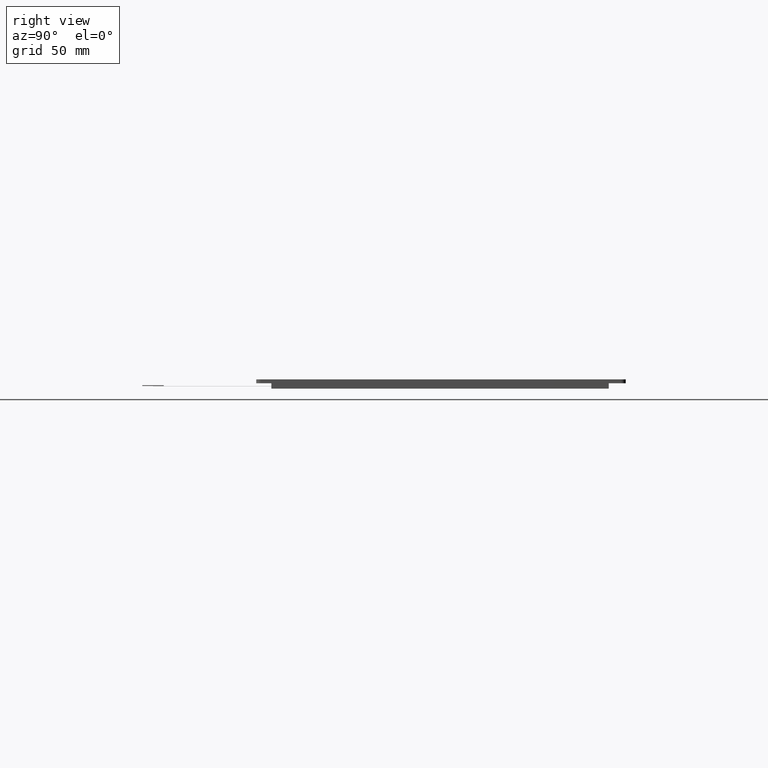
[diagram: clean part render]
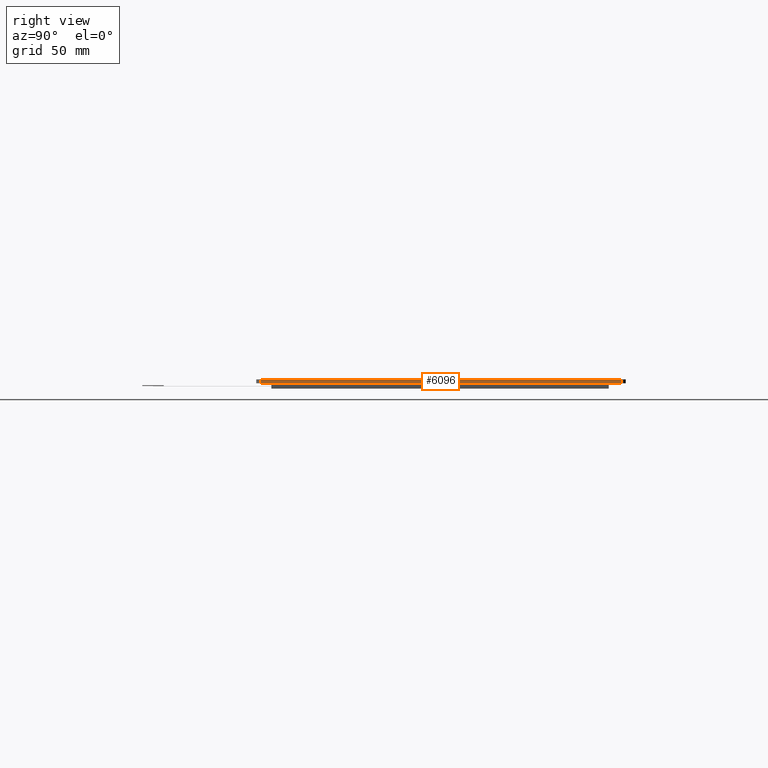
[diagram: same view with one face highlighted and labeled with its STEP entity id]
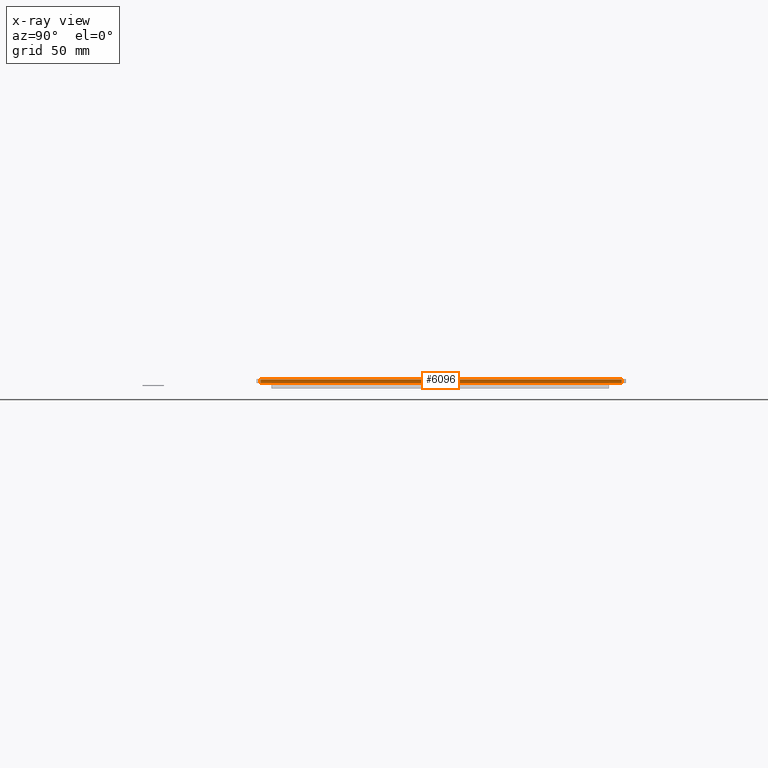
[diagram: x-ray of the same camera — body ghosted, the highlighted face saturated]
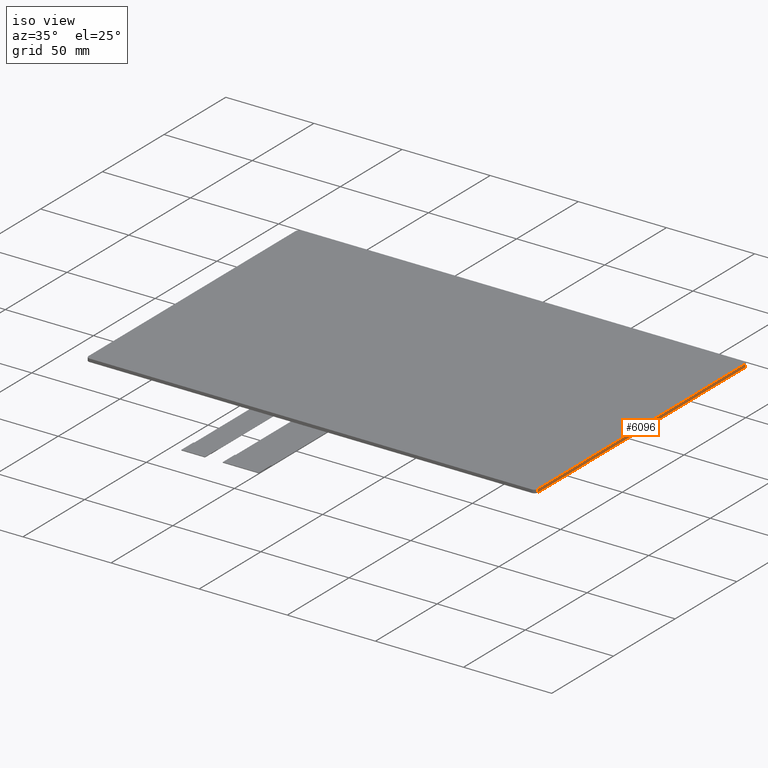
[diagram: same view with one face highlighted and labeled with its STEP entity id]
A machine part, right view. The second image highlights one B-rep face of the part: STEP entity #6096.
The next image is the same camera in x-ray: the body ghosted, the highlighted face saturated — about 0% of this face is hidden behind the body in this view.
A second angle (iso view) of the same face is appended — the face is thin or edge-on in the first view.
In plain terms, the highlighted planar face has unit normal (1, 0, 0).
Its self-contained STEP definition (entity closure, byte-faithful):
#52=FACE_OUTER_BOUND('',#362,.T.);
#362=EDGE_LOOP('',(#4015,#4016,#4017,#4018));
#666=LINE('',#8296,#1554);
#671=LINE('',#8307,#1559);
#675=LINE('',#8317,#1563);
#686=LINE('',#8344,#1574);
#1554=VECTOR('',#6756,10.);
#1559=VECTOR('',#6763,10.);
#1563=VECTOR('',#6773,10.);
#1574=VECTOR('',#6800,10.);
#2456=VERTEX_POINT('',#8282);
#2462=VERTEX_POINT('',#8294);
#2467=VERTEX_POINT('',#8306);
#2470=VERTEX_POINT('',#8316);
#3066=EDGE_CURVE('',#2462,#2456,#666,.T.);
#3071=EDGE_CURVE('',#2456,#2467,#671,.T.);
#3076=EDGE_CURVE('',#2470,#2467,#675,.T.);
#3090=EDGE_CURVE('',#2470,#2462,#686,.T.);
#4015=ORIENTED_EDGE('',*,*,#3071,.F.);
#4016=ORIENTED_EDGE('',*,*,#3066,.F.);
#4017=ORIENTED_EDGE('',*,*,#3090,.F.);
#4018=ORIENTED_EDGE('',*,*,#3076,.T.);
#5776=PLANE('',#6434);
#6096=ADVANCED_FACE('',(#52),#5776,.T.);
#6434=AXIS2_PLACEMENT_3D('',#8345,#6801,#6802);
#6756=DIRECTION('',(-1.03457008701238E-16,1.,0.));
#6763=DIRECTION('',(0.,0.,-1.));
#6773=DIRECTION('',(-1.03457008701238E-16,1.,0.));
#6800=DIRECTION('',(0.,0.,1.));
#6801=DIRECTION('center_axis',(1.,1.03457008701238E-16,0.));
#6802=DIRECTION('ref_axis',(-1.03457008701238E-16,1.,0.));
#8282=CARTESIAN_POINT('',(127.52,81.5,1.8));
#8294=CARTESIAN_POINT('',(127.52,-86.2,1.8));
#8296=CARTESIAN_POINT('',(127.52,-88.1999999999999,1.8));
#8306=CARTESIAN_POINT('',(127.52,81.5,0.));
#8307=CARTESIAN_POINT('',(127.52,81.5,0.));
#8316=CARTESIAN_POINT('',(127.52,-86.2,0.));
#8317=CARTESIAN_POINT('',(127.52,-88.1999999999999,0.));
#8344=CARTESIAN_POINT('',(127.52,-86.2,0.));
#8345=CARTESIAN_POINT('Origin',(127.52,-88.1999999999999,0.));